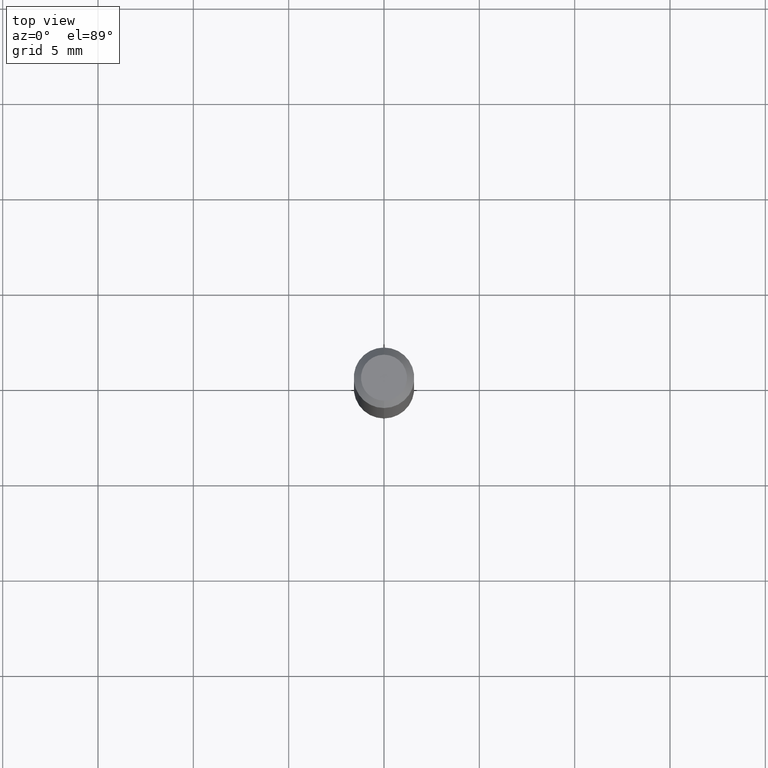
[diagram: clean part render]
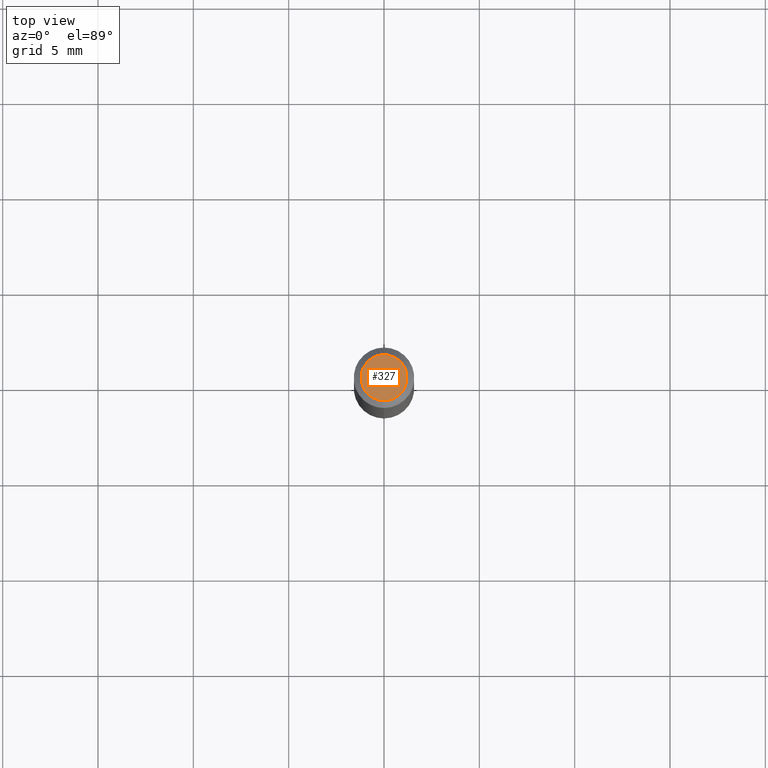
[diagram: same view with one face highlighted and labeled with its STEP entity id]
A machine part, top view. The second image highlights one B-rep face of the part: STEP entity #327.
In plain terms, the highlighted planar face has unit normal (0, -0, -1).
Its self-contained STEP definition (entity closure, byte-faithful):
#3 = FACE_OUTER_BOUND ( 'NONE', #438, .T. ) ;
#12 = ORIENTED_EDGE ( 'NONE', *, *, #139, .T. ) ;
#18 = CIRCLE ( 'NONE', #306, 0.04749999999999999362 ) ;
#28 = DIRECTION ( 'NONE',  ( -2.445458126525809980E-29, 3.491496632723149670E-15, 1.000000000000000000 ) ) ;
#42 = AXIS2_PLACEMENT_3D ( 'NONE', #332, #213, #252 ) ;
#51 = EDGE_CURVE ( 'NONE', #357, #431, #443, .T. ) ;
#93 = ORIENTED_EDGE ( 'NONE', *, *, #51, .T. ) ;
#127 = DIRECTION ( 'NONE',  ( 2.445458126525809699E-29, -3.491496632723149670E-15, -1.000000000000000000 ) ) ;
#139 = EDGE_CURVE ( 'NONE', #431, #357, #18, .T. ) ;
#198 = CARTESIAN_POINT ( 'NONE',  ( -3.773273898774340269E-16, -0.04749999999999999362, 1.569864969218186754E-16 ) ) ;
#213 = DIRECTION ( 'NONE',  ( -2.445458126525809980E-29, 3.491496632723149670E-15, 1.000000000000000000 ) ) ;
#237 = CARTESIAN_POINT ( 'NONE',  ( 3.316907271900976096E-16, 0.04749999999999999362, -1.702758866206150418E-16 ) ) ;
#252 = DIRECTION ( 'NONE',  ( -6.982962677686266711E-15, -1.000000000000000000, 3.491496632723149670E-15 ) ) ;
#294 = AXIS2_PLACEMENT_3D ( 'NONE', #237, #127, #358 ) ;
#306 = AXIS2_PLACEMENT_3D ( 'NONE', #329, #28, #419 ) ;
#327 = ADVANCED_FACE ( 'NONE', ( #3 ), #439, .F. ) ;
#329 = CARTESIAN_POINT ( 'NONE',  ( 2.166576402365995033E-46, -3.093323958952878323E-32, -8.859593132530900608E-18 ) ) ;
#332 = CARTESIAN_POINT ( 'NONE',  ( 2.166576402365995033E-46, -3.093323958952878323E-32, -8.859593132530900608E-18 ) ) ;
#357 = VERTEX_POINT ( 'NONE', #399 ) ;
#358 = DIRECTION ( 'NONE',  ( 6.982962677686265922E-15, 1.000000000000000000, -3.491496632723149670E-15 ) ) ;
#399 = CARTESIAN_POINT ( 'NONE',  ( 3.840629472727447874E-16, 0.04749999999999999362, -1.747056831868805136E-16 ) ) ;
#419 = DIRECTION ( 'NONE',  ( -6.982962677686266711E-15, -1.000000000000000000, 3.491496632723149670E-15 ) ) ;
#431 = VERTEX_POINT ( 'NONE', #198 ) ;
#438 = EDGE_LOOP ( 'NONE', ( #93, #12 ) ) ;
#439 = PLANE ( 'NONE',  #294 ) ;
#443 = CIRCLE ( 'NONE', #42, 0.04749999999999999362 ) ;